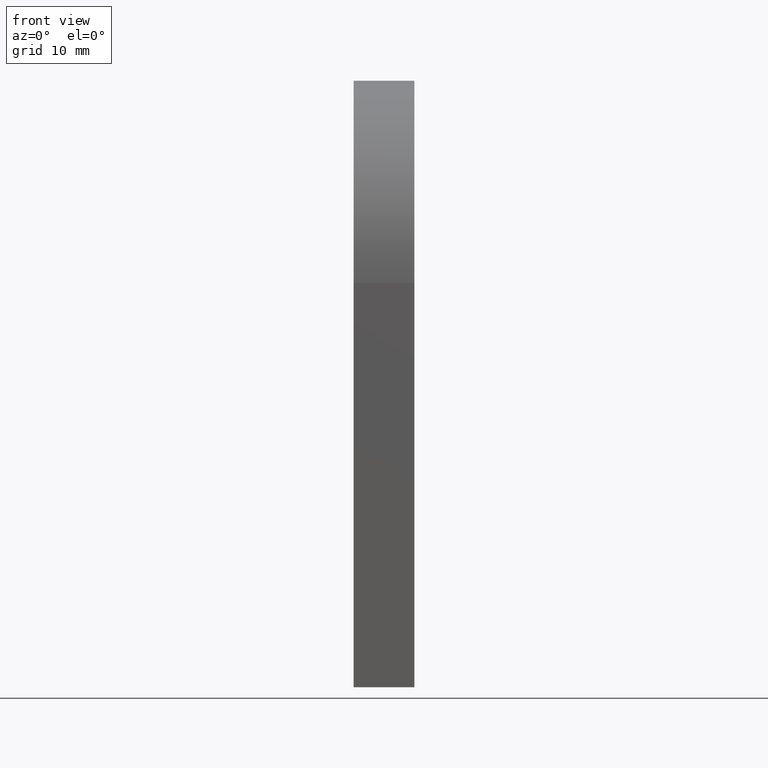
[diagram: clean part render]
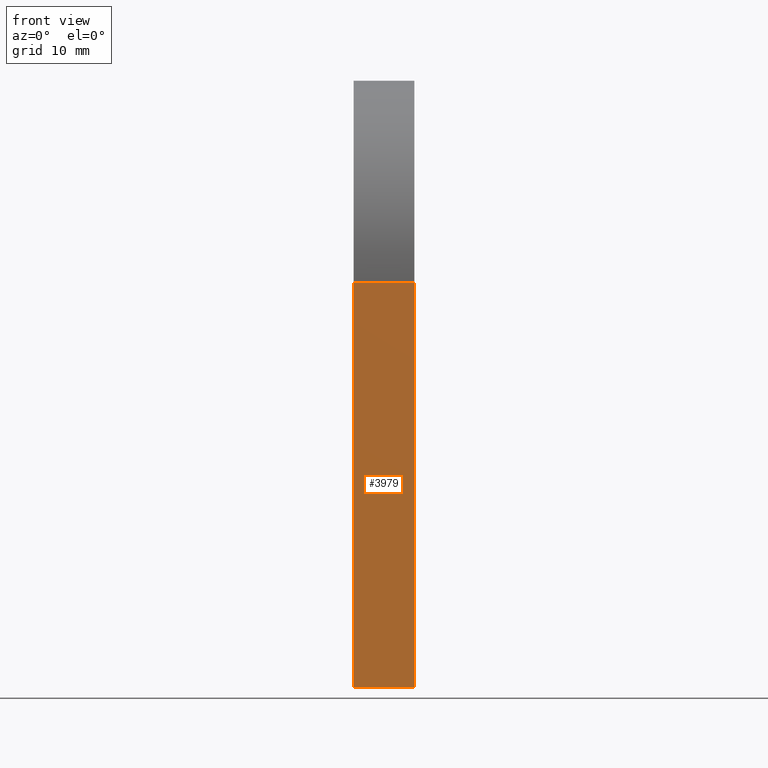
[diagram: same view with one face highlighted and labeled with its STEP entity id]
A machine part, front view. The second image highlights one B-rep face of the part: STEP entity #3979.
In plain terms, the highlighted planar face has unit normal (0, -1, -0).
Its self-contained STEP definition (entity closure, byte-faithful):
#722 = CARTESIAN_POINT ( 'NONE',  ( 3.000000000000000000, -20.00000000000000400, 39.99999999999998600 ) ) ;
#886 = DIRECTION ( 'NONE',  ( 0.0000000000000000000, -8.673617379884036700E-017, 1.000000000000000000 ) ) ;
#1014 = DIRECTION ( 'NONE',  ( 0.0000000000000000000, -1.000000000000000000, -8.673617379884036700E-017 ) ) ;
#1297 = VECTOR ( 'NONE', #886, 1000.000000000000000 ) ;
#1377 = DIRECTION ( 'NONE',  ( -1.000000000000000000, -0.0000000000000000000, -0.0000000000000000000 ) ) ;
#1393 = CARTESIAN_POINT ( 'NONE',  ( 3.000000000000000000, -20.00000000000000400, 39.99999999999998600 ) ) ;
#1700 = CARTESIAN_POINT ( 'NONE',  ( 3.000000000000000000, -20.00000000000000000, -4.286263797015736500E-015 ) ) ;
#1703 = PLANE ( 'NONE',  #7284 ) ;
#1966 = CARTESIAN_POINT ( 'NONE',  ( -3.000000000000000000, -20.00000000000000400, 39.99999999999998600 ) ) ;
#1979 = VECTOR ( 'NONE', #1377, 1000.000000000000000 ) ;
#2277 = DIRECTION ( 'NONE',  ( 0.0000000000000000000, -8.673617379884036700E-017, 1.000000000000000000 ) ) ;
#2624 = VERTEX_POINT ( 'NONE', #8769 ) ;
#3519 = VECTOR ( 'NONE', #2277, 1000.000000000000000 ) ;
#3595 = EDGE_CURVE ( 'NONE', #9109, #2624, #8975, .T. ) ;
#3979 = ADVANCED_FACE ( 'NONE', ( #7525 ), #1703, .T. ) ;
#5010 = VECTOR ( 'NONE', #7160, 1000.000000000000000 ) ;
#5172 = ORIENTED_EDGE ( 'NONE', *, *, #5536, .T. ) ;
#5247 = LINE ( 'NONE', #7445, #3519 ) ;
#5536 = EDGE_CURVE ( 'NONE', #9109, #10103, #6851, .T. ) ;
#5689 = CARTESIAN_POINT ( 'NONE',  ( 3.000000000000000000, -20.00000000000000000, -4.286263797015736500E-015 ) ) ;
#6079 = CARTESIAN_POINT ( 'NONE',  ( 3.000000000000000000, -20.00000000000000000, -4.286263797015736500E-015 ) ) ;
#6257 = CARTESIAN_POINT ( 'NONE',  ( 3.000000000000000000, -20.00000000000000000, -4.286263797015736500E-015 ) ) ;
#6350 = VERTEX_POINT ( 'NONE', #1966 ) ;
#6509 = EDGE_CURVE ( 'NONE', #10103, #6350, #7230, .T. ) ;
#6599 = ORIENTED_EDGE ( 'NONE', *, *, #3595, .F. ) ;
#6851 = LINE ( 'NONE', #5689, #1297 ) ;
#6914 = DIRECTION ( 'NONE',  ( 0.0000000000000000000, 8.673617379884036700E-017, -1.000000000000000000 ) ) ;
#7160 = DIRECTION ( 'NONE',  ( -1.000000000000000000, -0.0000000000000000000, -0.0000000000000000000 ) ) ;
#7230 = LINE ( 'NONE', #1393, #5010 ) ;
#7284 = AXIS2_PLACEMENT_3D ( 'NONE', #6079, #1014, #6914 ) ;
#7445 = CARTESIAN_POINT ( 'NONE',  ( -3.000000000000000000, -20.00000000000000000, -4.286263797015736500E-015 ) ) ;
#7525 = FACE_OUTER_BOUND ( 'NONE', #7650, .T. ) ;
#7544 = EDGE_CURVE ( 'NONE', #2624, #6350, #5247, .T. ) ;
#7650 = EDGE_LOOP ( 'NONE', ( #10200, #6599, #5172, #9665 ) ) ;
#8769 = CARTESIAN_POINT ( 'NONE',  ( -3.000000000000000000, -20.00000000000000000, -4.286263797015736500E-015 ) ) ;
#8975 = LINE ( 'NONE', #6257, #1979 ) ;
#9109 = VERTEX_POINT ( 'NONE', #1700 ) ;
#9665 = ORIENTED_EDGE ( 'NONE', *, *, #6509, .T. ) ;
#10103 = VERTEX_POINT ( 'NONE', #722 ) ;
#10200 = ORIENTED_EDGE ( 'NONE', *, *, #7544, .F. ) ;